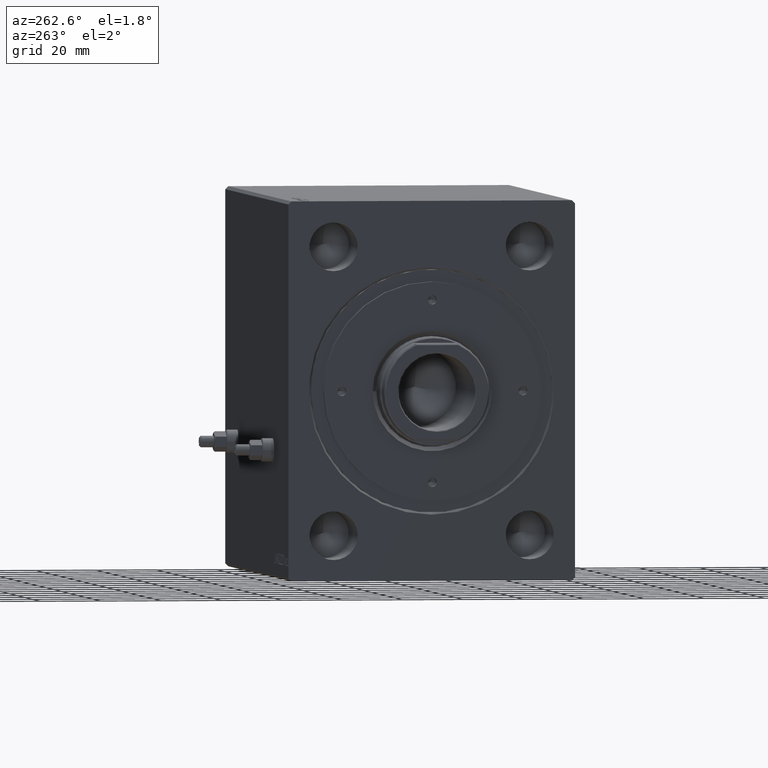
[diagram: clean part render]
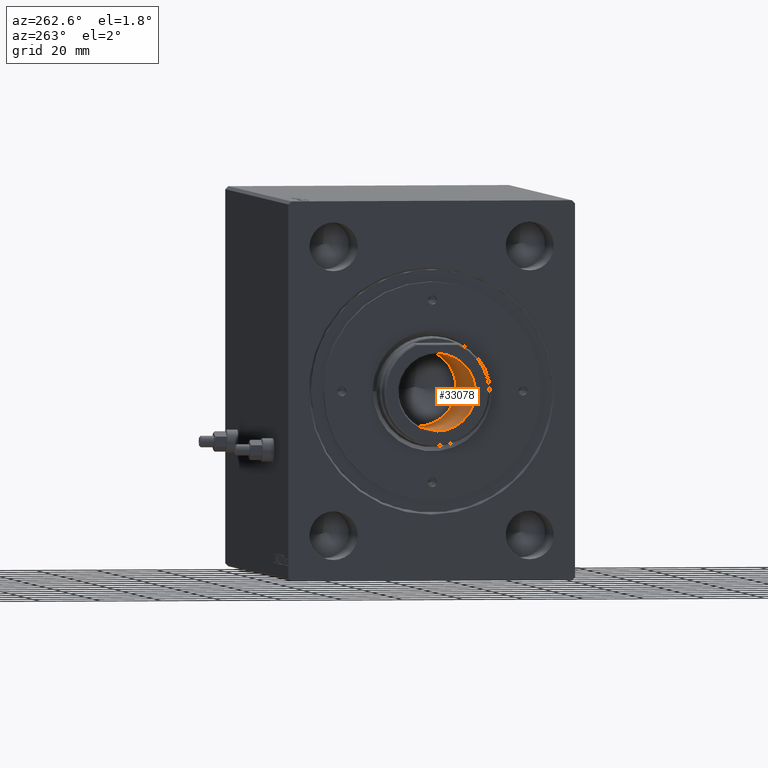
[diagram: same view with one face highlighted and labeled with its STEP entity id]
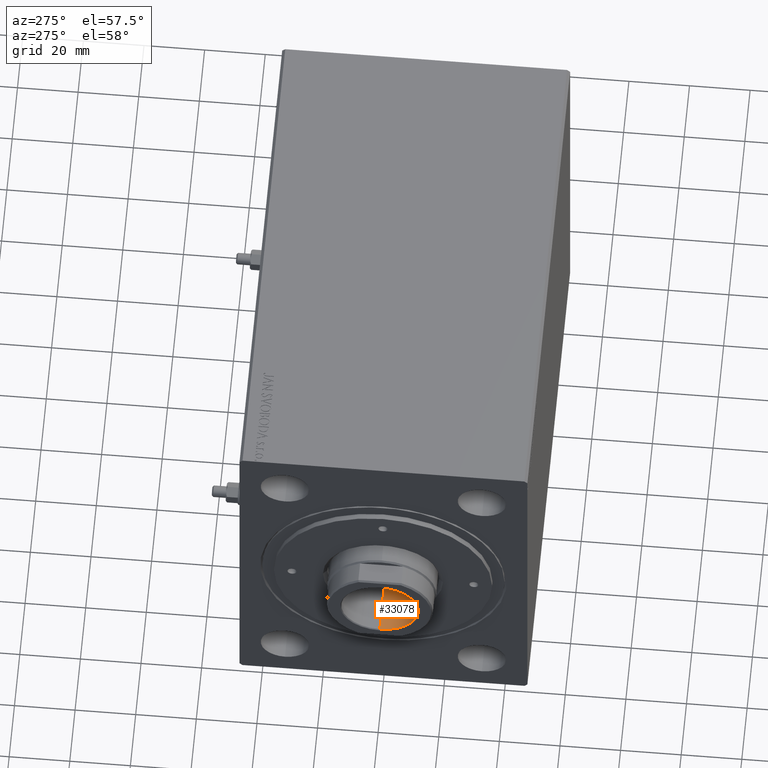
[diagram: same view with one face highlighted and labeled with its STEP entity id]
A machine part, auxiliary view. The second image highlights one B-rep face of the part: STEP entity #33078.
A second angle (auxiliary view) of the same face is appended — the face is thin or edge-on in the first view.
In plain terms, the highlighted cylindrical surface (partial cylindrical patch) has radius 12.75 mm, axis along (-1, 0, 0).
Its self-contained STEP definition (entity closure, byte-faithful):
#89 = LINE ( 'NONE', #24045, #26891 ) ;
#2756 = CARTESIAN_POINT ( 'NONE',  ( 0.000000000000000000, 0.000000000000000000, 104.2000000000000028 ) ) ;
#5479 = DIRECTION ( 'NONE',  ( 1.000000000000000000, 0.000000000000000000, 0.000000000000000000 ) ) ;
#6148 = EDGE_CURVE ( 'NONE', #20403, #9034, #89, .T. ) ;
#6858 = DIRECTION ( 'NONE',  ( 0.000000000000000000, 0.000000000000000000, 1.000000000000000000 ) ) ;
#7131 = CARTESIAN_POINT ( 'NONE',  ( 12.74999999999999467, 0.000000000000000000, 153.8999999999999773 ) ) ;
#8310 = CARTESIAN_POINT ( 'NONE',  ( -12.74999999999999467, 1.561424668912874519E-15, 153.8999999999999773 ) ) ;
#8503 = CARTESIAN_POINT ( 'NONE',  ( 12.74999999999999112, 0.000000000000000000, 104.2000000000000028 ) ) ;
#9034 = VERTEX_POINT ( 'NONE', #7131 ) ;
#9601 = LINE ( 'NONE', #23519, #34927 ) ;
#10626 = CIRCLE ( 'NONE', #14280, 12.74999999999999112 ) ;
#10729 = DIRECTION ( 'NONE',  ( 1.000000000000000000, 0.000000000000000000, 0.000000000000000000 ) ) ;
#11101 = ORIENTED_EDGE ( 'NONE', *, *, #22159, .T. ) ;
#11476 = EDGE_CURVE ( 'NONE', #28782, #30591, #9601, .T. ) ;
#13480 = CARTESIAN_POINT ( 'NONE',  ( 0.000000000000000000, 0.000000000000000000, 153.8999999999999773 ) ) ;
#14280 = AXIS2_PLACEMENT_3D ( 'NONE', #2756, #23050, #27136 ) ;
#16570 = AXIS2_PLACEMENT_3D ( 'NONE', #13480, #6858, #10729 ) ;
#18372 = ORIENTED_EDGE ( 'NONE', *, *, #6148, .F. ) ;
#20403 = VERTEX_POINT ( 'NONE', #8503 ) ;
#20690 = ORIENTED_EDGE ( 'NONE', *, *, #11476, .T. ) ;
#21433 = AXIS2_PLACEMENT_3D ( 'NONE', #26690, #23495, #5479 ) ;
#22159 = EDGE_CURVE ( 'NONE', #30591, #9034, #36182, .T. ) ;
#22812 = FACE_OUTER_BOUND ( 'NONE', #29605, .T. ) ;
#23050 = DIRECTION ( 'NONE',  ( -0.000000000000000000, -0.000000000000000000, 1.000000000000000000 ) ) ;
#23495 = DIRECTION ( 'NONE',  ( -0.000000000000000000, -0.000000000000000000, 1.000000000000000000 ) ) ;
#23519 = CARTESIAN_POINT ( 'NONE',  ( -12.74999999999999467, 1.561424668912874519E-15, 154.2000000000000171 ) ) ;
#24045 = CARTESIAN_POINT ( 'NONE',  ( 12.74999999999999467, 0.000000000000000000, 154.2000000000000171 ) ) ;
#26690 = CARTESIAN_POINT ( 'NONE',  ( 0.000000000000000000, 0.000000000000000000, 154.2000000000000171 ) ) ;
#26891 = VECTOR ( 'NONE', #38368, 1000.000000000000000 ) ;
#27136 = DIRECTION ( 'NONE',  ( 1.000000000000000000, 0.000000000000000000, 0.000000000000000000 ) ) ;
#28782 = VERTEX_POINT ( 'NONE', #35570 ) ;
#29605 = EDGE_LOOP ( 'NONE', ( #35918, #20690, #11101, #18372 ) ) ;
#30591 = VERTEX_POINT ( 'NONE', #8310 ) ;
#33078 = ADVANCED_FACE ( 'NONE', ( #22812 ), #36691, .F. ) ;
#34927 = VECTOR ( 'NONE', #37396, 1000.000000000000000 ) ;
#35570 = CARTESIAN_POINT ( 'NONE',  ( -12.74999999999999112, 1.561424668912874125E-15, 104.2000000000000028 ) ) ;
#35918 = ORIENTED_EDGE ( 'NONE', *, *, #42027, .F. ) ;
#36182 = CIRCLE ( 'NONE', #16570, 12.74999999999999467 ) ;
#36691 = CYLINDRICAL_SURFACE ( 'NONE', #21433, 12.74999999999999467 ) ;
#37396 = DIRECTION ( 'NONE',  ( -0.000000000000000000, -0.000000000000000000, 1.000000000000000000 ) ) ;
#38368 = DIRECTION ( 'NONE',  ( -0.000000000000000000, -0.000000000000000000, 1.000000000000000000 ) ) ;
#42027 = EDGE_CURVE ( 'NONE', #28782, #20403, #10626, .T. ) ;